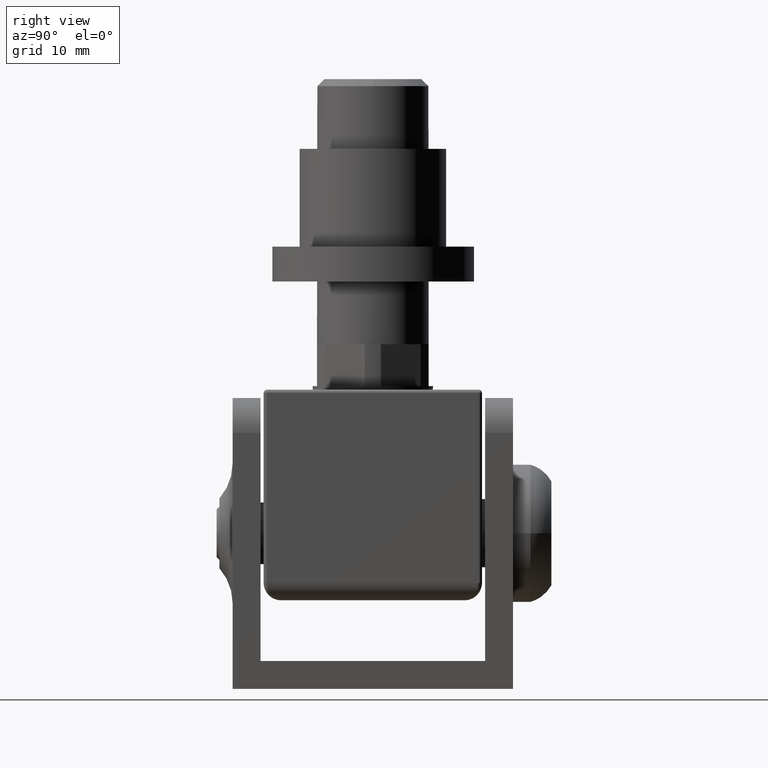
[diagram: clean part render]
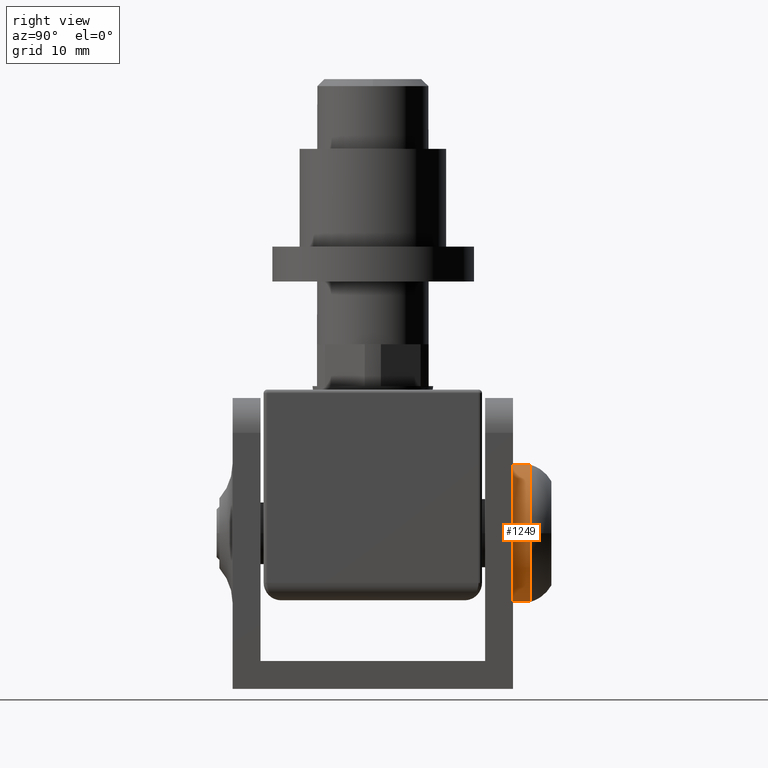
[diagram: same view with one face highlighted and labeled with its STEP entity id]
A machine part, right view. The second image highlights one B-rep face of the part: STEP entity #1249.
In plain terms, the highlighted cylindrical surface (bore or boss wall) has radius 9.9 mm, axis along (-0, -1, -0).
Its self-contained STEP definition (entity closure, byte-faithful):
#177 = CIRCLE ( 'NONE', #3189, 9.899999999999986144 ) ;
#1227 = AXIS2_PLACEMENT_3D ( 'NONE', #7149, #2408, #3606 ) ;
#1249 = ADVANCED_FACE ( 'NONE', ( #5705, #5909 ), #3814, .T. ) ;
#2122 = CARTESIAN_POINT ( 'NONE',  ( 4.336808689942017736E-15, 20.99999999999999645, -9.899999999999986144 ) ) ;
#2408 = DIRECTION ( 'NONE',  ( 4.911121358187451425E-32, -1.000000000000000000, -1.848892746611746419E-32 ) ) ;
#3189 = AXIS2_PLACEMENT_3D ( 'NONE', #4378, #9088, #13841 ) ;
#3606 = DIRECTION ( 'NONE',  ( 0.000000000000000000, 0.000000000000000000, -1.000000000000000000 ) ) ;
#3814 = CYLINDRICAL_SURFACE ( 'NONE', #15116, 9.899999999999987921 ) ;
#4168 = VERTEX_POINT ( 'NONE', #12804 ) ;
#4378 = CARTESIAN_POINT ( 'NONE',  ( 4.336808689942017736E-15, 20.99999999999999645, 1.925929944387235853E-31 ) ) ;
#5705 = FACE_OUTER_BOUND ( 'NONE', #13649, .T. ) ;
#5824 = DIRECTION ( 'NONE',  ( 0.000000000000000000, 0.000000000000000000, -1.000000000000000000 ) ) ;
#5832 = EDGE_LOOP ( 'NONE', ( #7263 ) ) ;
#5909 = FACE_OUTER_BOUND ( 'NONE', #5832, .T. ) ;
#7149 = CARTESIAN_POINT ( 'NONE',  ( 4.336808689942017736E-15, 18.49999999999999645, 1.925929944387235853E-31 ) ) ;
#7263 = ORIENTED_EDGE ( 'NONE', *, *, #14492, .F. ) ;
#8209 = CIRCLE ( 'NONE', #1227, 9.899999999999987921 ) ;
#9088 = DIRECTION ( 'NONE',  ( 4.911121358187451425E-32, -1.000000000000000000, -1.848892746611746419E-32 ) ) ;
#11007 = CARTESIAN_POINT ( 'NONE',  ( 4.336808689942017736E-15, -24.00000000000000000, -3.851859888774471706E-31 ) ) ;
#12541 = EDGE_CURVE ( 'NONE', #12924, #12924, #177, .T. ) ;
#12804 = CARTESIAN_POINT ( 'NONE',  ( 4.336808689942017736E-15, 18.49999999999999645, -9.899999999999987921 ) ) ;
#12924 = VERTEX_POINT ( 'NONE', #2122 ) ;
#13384 = DIRECTION ( 'NONE',  ( 4.911121358187451425E-32, -1.000000000000000000, -1.848892746611746419E-32 ) ) ;
#13649 = EDGE_LOOP ( 'NONE', ( #15194 ) ) ;
#13841 = DIRECTION ( 'NONE',  ( 0.000000000000000000, 0.000000000000000000, -1.000000000000000000 ) ) ;
#14492 = EDGE_CURVE ( 'NONE', #4168, #4168, #8209, .T. ) ;
#15116 = AXIS2_PLACEMENT_3D ( 'NONE', #11007, #13384, #5824 ) ;
#15194 = ORIENTED_EDGE ( 'NONE', *, *, #12541, .T. ) ;